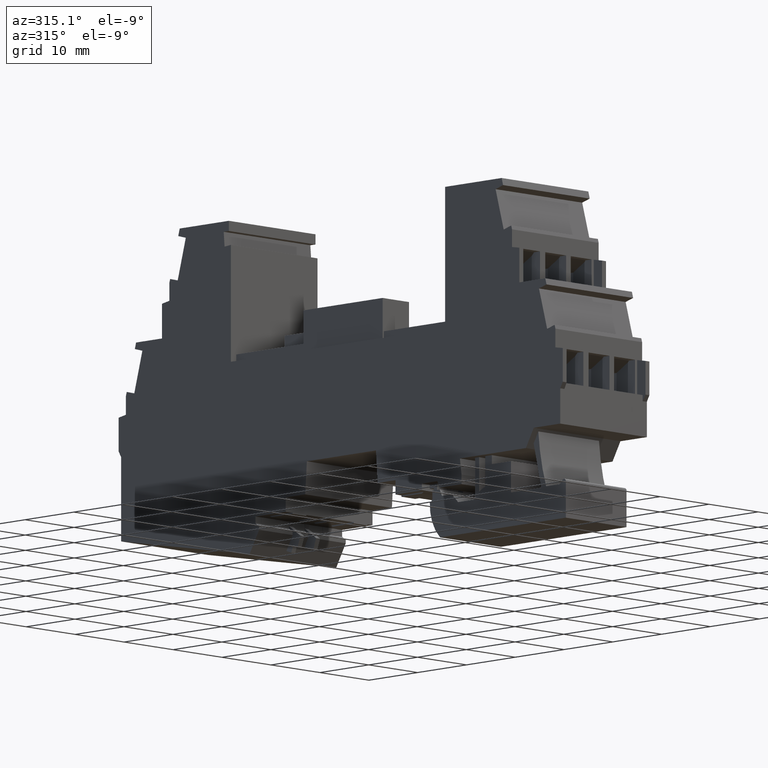
[diagram: clean part render]
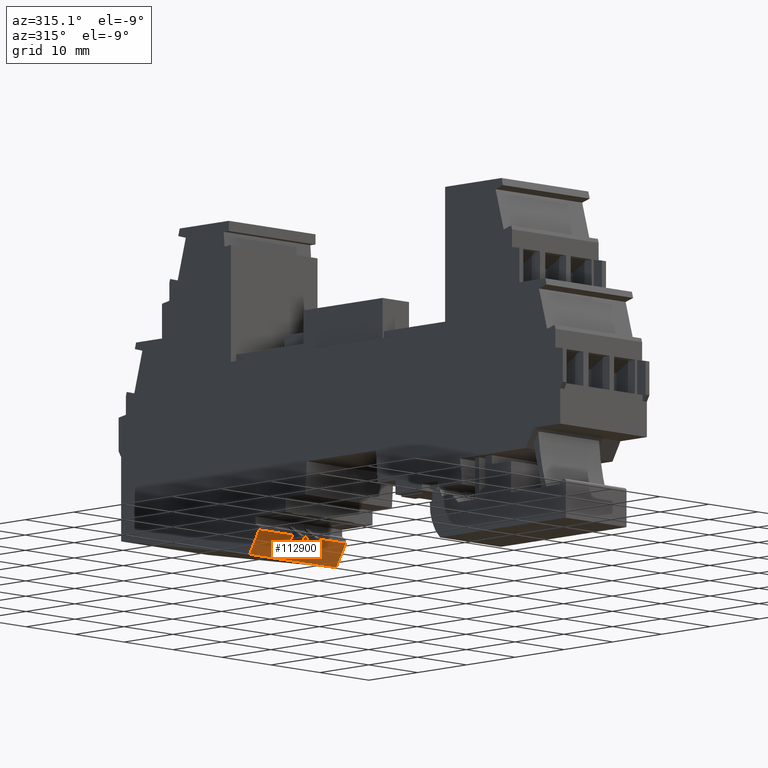
[diagram: same view with one face highlighted and labeled with its STEP entity id]
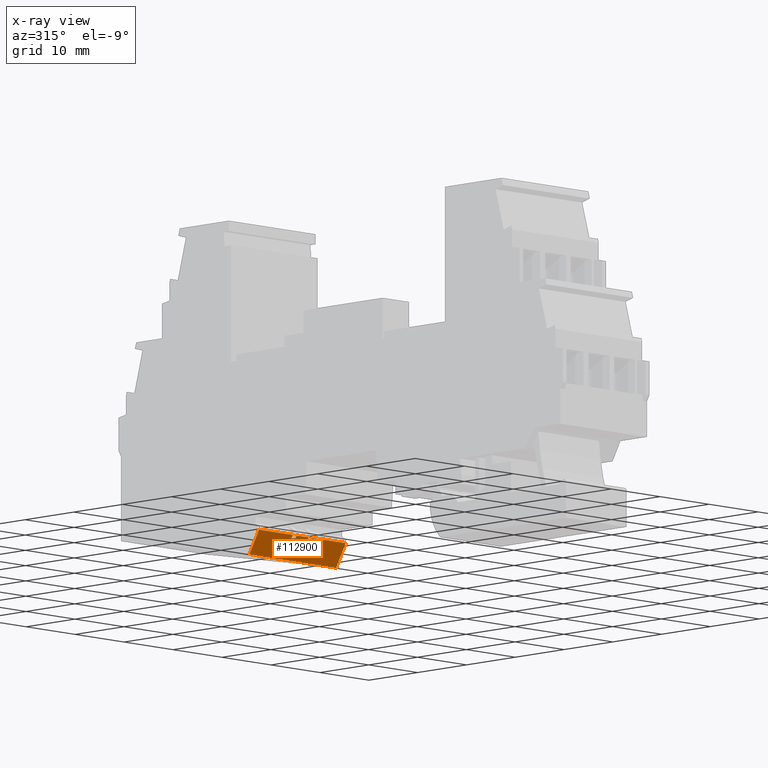
[diagram: x-ray of the same camera — body ghosted, the highlighted face saturated]
A machine part, auxiliary view. The second image highlights one B-rep face of the part: STEP entity #112900.
The next image is the same camera in x-ray: the body ghosted, the highlighted face saturated — about 0% of this face is hidden behind the body in this view.
In plain terms, the highlighted planar face has unit normal (-0, 0.8642, 0.5032).
Its self-contained STEP definition (entity closure, byte-faithful):
#3960=CARTESIAN_POINT('',(155.874971805452,3.0155628737191,
-1.11334144233576));
#3970=VERTEX_POINT('',#3960);
#4000=CARTESIAN_POINT('',(145.320669820589,21.1424286096103,
-1.11334144313539));
#4010=DIRECTION('',(-0.503170012398067,0.86418744414816,
-3.81220352826189E-11));
#4020=VECTOR('',#4010,1.);
#4030=LINE('',#4000,#4020);
#4040=CARTESIAN_POINT('',(157.833683408647,-0.348496852577259,
-1.11334144218735));
#4050=VERTEX_POINT('',#4040);
#4060=EDGE_CURVE('',#4050,#3970,#4030,.T.);
#10170=CARTESIAN_POINT('',(157.833683409422,-0.348496851803688,
16.5866585542641));
#10180=VERTEX_POINT('',#10170);
#10210=CARTESIAN_POINT('',(145.320669821365,21.1424286103838,
16.5866585533128));
#10220=DIRECTION('',(-0.503170012398067,0.86418744414816,
-3.82546514229104E-11));
#10230=VECTOR('',#10220,1.);
#10240=LINE('',#10210,#10230);
#10250=CARTESIAN_POINT('',(155.874971806228,3.0155628744927,
16.5866585541152));
#10260=VERTEX_POINT('',#10250);
#10270=EDGE_CURVE('',#10180,#10260,#10240,.T.);
#99760=CARTESIAN_POINT('',(145.320669820889,21.1424286099097,
5.73665855818507));
#99770=DIRECTION('',(-0.503170012398067,0.86418744414816,
-2.55952778734708E-11));
#99780=VECTOR('',#99770,1.);
#99790=LINE('',#99760,#99780);
#99800=CARTESIAN_POINT('',(157.15588500747,0.81561240262058,
5.7366585587871));
#99810=VERTEX_POINT('',#99800);
#99820=CARTESIAN_POINT('',(155.874971805842,3.01556287386463,
5.73665855872195));
#99830=VERTEX_POINT('',#99820);
#99840=EDGE_CURVE('',#99810,#99830,#99790,.T.);
#101070=CARTESIAN_POINT('',(157.155885007501,0.815612402662385,
6.5366585587871));
#101080=VERTEX_POINT('',#101070);
#101540=CARTESIAN_POINT('',(155.874971805787,3.01556287405347,
6.53665855872194));
#101550=VERTEX_POINT('',#101540);
#101580=CARTESIAN_POINT('',(145.320669820924,21.1424286099446,
6.53665855818507));
#101590=DIRECTION('',(-0.503170012398067,0.86418744414816,
-2.55952778734708E-11));
#101600=VECTOR('',#101590,1.);
#101610=LINE('',#101580,#101600);
#101620=EDGE_CURVE('',#101080,#101550,#101610,.T.);
#101870=CARTESIAN_POINT('',(157.155885007912,0.81561240315186,
16.5866585574352));
#101880=DIRECTION('',(4.00281029108637E-11,5.02332470933895E-11,1.));
#101890=VECTOR('',#101880,1.);
#101900=LINE('',#101870,#101890);
#101910=EDGE_CURVE('',#99810,#101080,#101900,.T.);
#103400=CARTESIAN_POINT('',(155.874971806235,3.01556287346284,
16.5866585573952));
#103410=DIRECTION('',(-4.43599777940048E-11,3.23009848993826E-11,-1.));
#103420=VECTOR('',#103410,1.);
#103430=LINE('',#103400,#103420);
#103440=CARTESIAN_POINT('',(155.874971805634,3.01556287390051,
3.0366585581323));
#103450=VERTEX_POINT('',#103440);
#103460=EDGE_CURVE('',#99830,#103450,#103430,.T.);
#103480=CARTESIAN_POINT('',(155.874971806228,3.0155628744927,
16.5866585573952));
#103490=DIRECTION('',(4.3829349678474E-11,4.37046590461377E-11,1.));
#103500=VECTOR('',#103490,1.);
#103510=LINE('',#103480,#103500);
#103520=EDGE_CURVE('',#3970,#103450,#103510,.T.);
#110010=CARTESIAN_POINT('',(145.320669821029,21.1424286100495,
8.93665855461286));
#110020=DIRECTION('',(-0.503170012398067,0.86418744414816,
-2.55952778734708E-11));
#110030=VECTOR('',#110020,1.);
#110040=LINE('',#110010,#110030);
#110050=CARTESIAN_POINT('',(156.644619017831,1.6937045745924,
8.93665855518888));
#110060=VERTEX_POINT('',#110050);
#110070=CARTESIAN_POINT('',(155.874971806088,3.0155628738221,
8.93665855514974));
#110080=VERTEX_POINT('',#110070);
#110090=EDGE_CURVE('',#110060,#110080,#110040,.T.);
#110760=CARTESIAN_POINT('',(156.644619017863,1.69370457463258,
9.73665855518889));
#110770=VERTEX_POINT('',#110760);
#110800=CARTESIAN_POINT('',(156.644619018137,1.69370457497669,
16.5866585574192));
#110810=DIRECTION('',(4.00281029108638E-11,5.02332470933895E-11,1.));
#110820=VECTOR('',#110810,1.);
#110830=LINE('',#110800,#110820);
#110840=EDGE_CURVE('',#110060,#110770,#110830,.T.);
#111360=CARTESIAN_POINT('',(155.874971805927,3.01556287419332,
9.73665855514973));
#111370=VERTEX_POINT('',#111360);
#111400=CARTESIAN_POINT('',(145.320669821064,21.1424286100845,
9.73665855461286));
#111410=DIRECTION('',(0.503170012398067,-0.86418744414816,
2.55952778734708E-11));
#111420=VECTOR('',#111410,1.);
#111430=LINE('',#111400,#111420);
#111440=EDGE_CURVE('',#111370,#110770,#111430,.T.);
#112290=CARTESIAN_POINT('',(155.874971806228,3.0155628744927,
16.5866585573952));
#112300=DIRECTION('',(-4.3829349678474E-11,-4.37046590461377E-11,-1.));
#112310=VECTOR('',#112300,1.);
#112320=LINE('',#112290,#112310);
#112330=EDGE_CURVE('',#110080,#101550,#112320,.T.);
#112480=CARTESIAN_POINT('',(157.8336834095,-0.348496851726331,
18.3566609635776));
#112490=DIRECTION('',(0.86418744414816,0.503170012398067,
-5.98676475114148E-11));
#112500=DIRECTION('',(-0.503170012398067,0.86418744414816,
-1.57154031773315E-11));
#112510=AXIS2_PLACEMENT_3D('',#112480,#112490,#112500);
#112520=PLANE('',#112510);
#112530=CARTESIAN_POINT('',(157.833683408887,-0.348496851901928,
16.5866585574564));
#112540=DIRECTION('',(4.32724838980572E-12,3.64546667762985E-11,1.));
#112550=VECTOR('',#112540,1.);
#112560=LINE('',#112530,#112550);
#112570=CARTESIAN_POINT('',(157.833683408816,-0.348496852505249,
0.0366585549279677));
#112580=VERTEX_POINT('',#112570);
#112590=CARTESIAN_POINT('',(157.833683408858,-0.348496852147992,
9.8366585572789));
#112600=VERTEX_POINT('',#112590);
#112610=EDGE_CURVE('',#112580,#112600,#112560,.T.);
#112620=ORIENTED_EDGE('',*,*,#112610,.T.);
#112630=CARTESIAN_POINT('',(157.833683409422,-0.348496851803688,
16.5866585574564));
#112640=DIRECTION('',(4.3829349678474E-11,4.37046590461377E-11,1.));
#112650=VECTOR('',#112640,1.);
#112660=LINE('',#112630,#112650);
#112670=EDGE_CURVE('',#4050,#112580,#112660,.T.);
#112680=ORIENTED_EDGE('',*,*,#112670,.T.);
#112690=ORIENTED_EDGE('',*,*,#4060,.F.);
#112700=ORIENTED_EDGE('',*,*,#103520,.F.);
#112710=ORIENTED_EDGE('',*,*,#103460,.T.);
#112720=ORIENTED_EDGE('',*,*,#99840,.T.);
#112730=ORIENTED_EDGE('',*,*,#101910,.F.);
#112740=ORIENTED_EDGE('',*,*,#101620,.F.);
#112750=ORIENTED_EDGE('',*,*,#112330,.T.);
#112760=ORIENTED_EDGE('',*,*,#110090,.T.);
#112770=ORIENTED_EDGE('',*,*,#110840,.F.);
#112780=ORIENTED_EDGE('',*,*,#111440,.T.);
#112790=CARTESIAN_POINT('',(155.874971806228,3.0155628744927,
16.5866585573952));
#112800=DIRECTION('',(4.3829349678474E-11,4.37046590461377E-11,1.));
#112810=VECTOR('',#112800,1.);
#112820=LINE('',#112790,#112810);
#112830=EDGE_CURVE('',#111370,#10260,#112820,.T.);
#112840=ORIENTED_EDGE('',*,*,#112830,.F.);
#112850=ORIENTED_EDGE('',*,*,#10270,.T.);
#112860=EDGE_CURVE('',#112600,#10180,#112660,.T.);
#112870=ORIENTED_EDGE('',*,*,#112860,.T.);
#112880=EDGE_LOOP('',(#112870,#112850,#112840,#112780,#112770,#112760,
#112750,#112740,#112730,#112720,#112710,#112700,#112690,#112680,#112620)
);
#112890=FACE_OUTER_BOUND('',#112880,.T.);
#112900=ADVANCED_FACE('',(#112890),#112520,.F.);